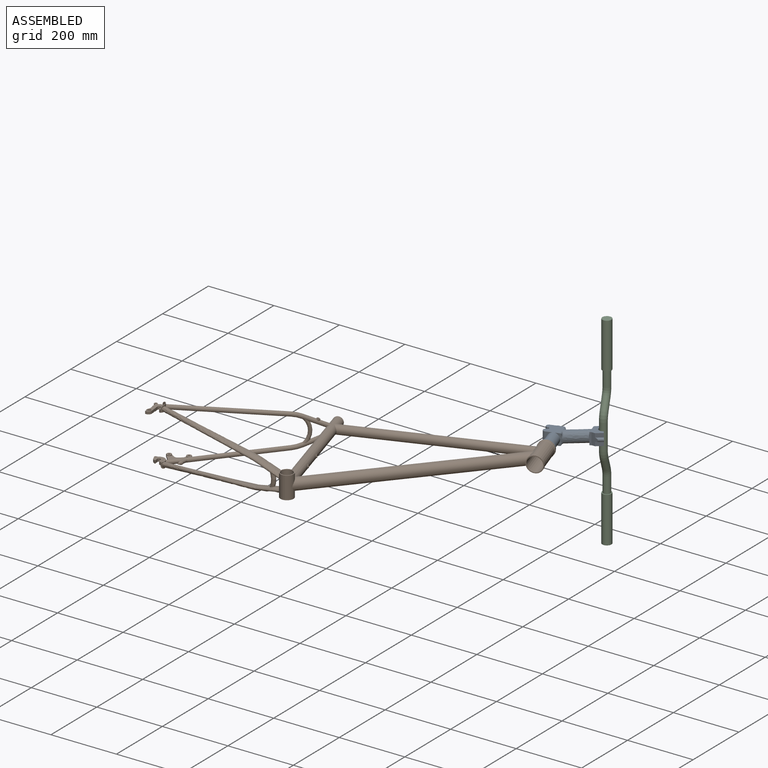
[diagram: assembled view]
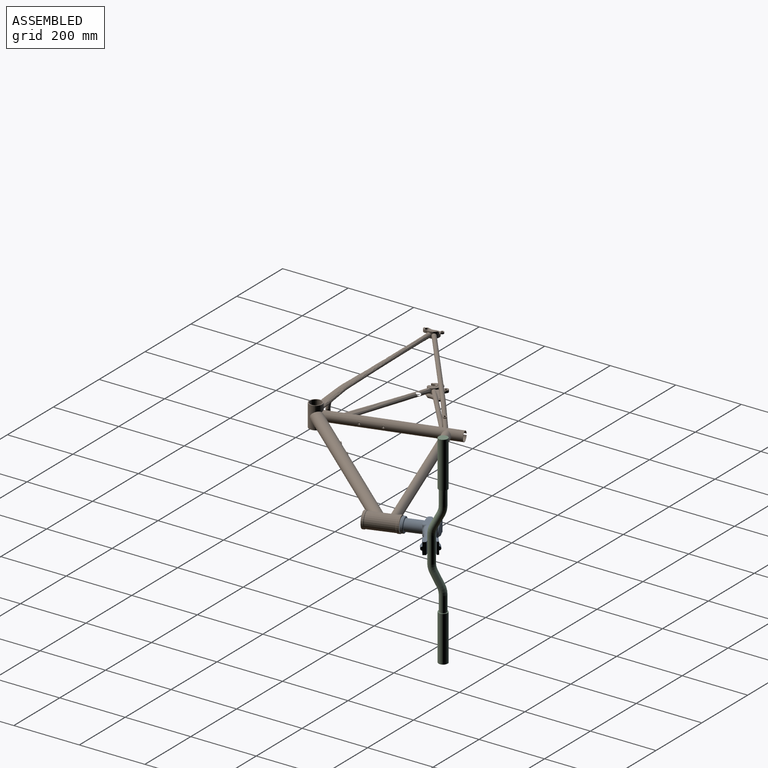
[diagram: assembled view, second angle]
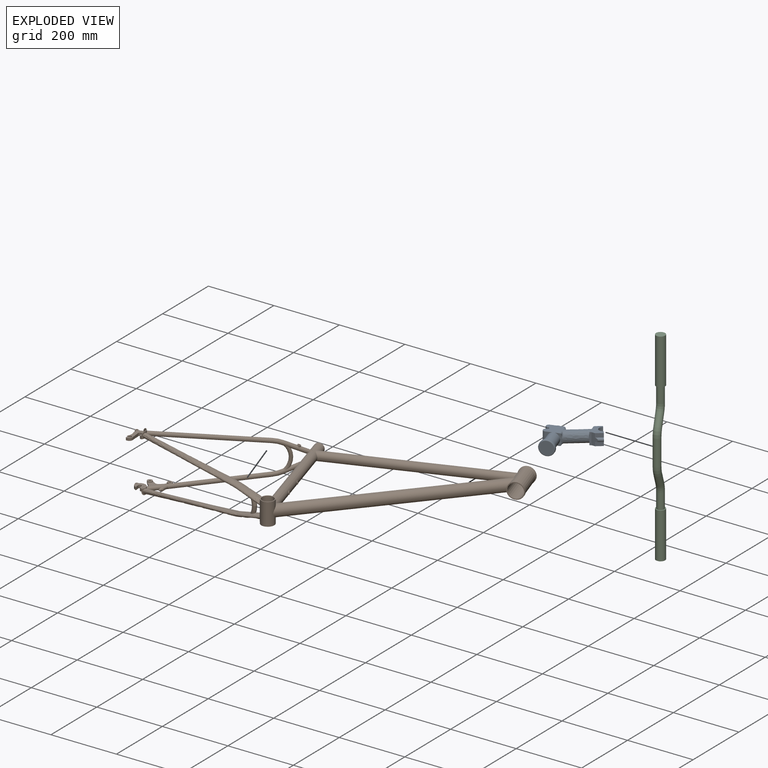
[diagram: exploded view]
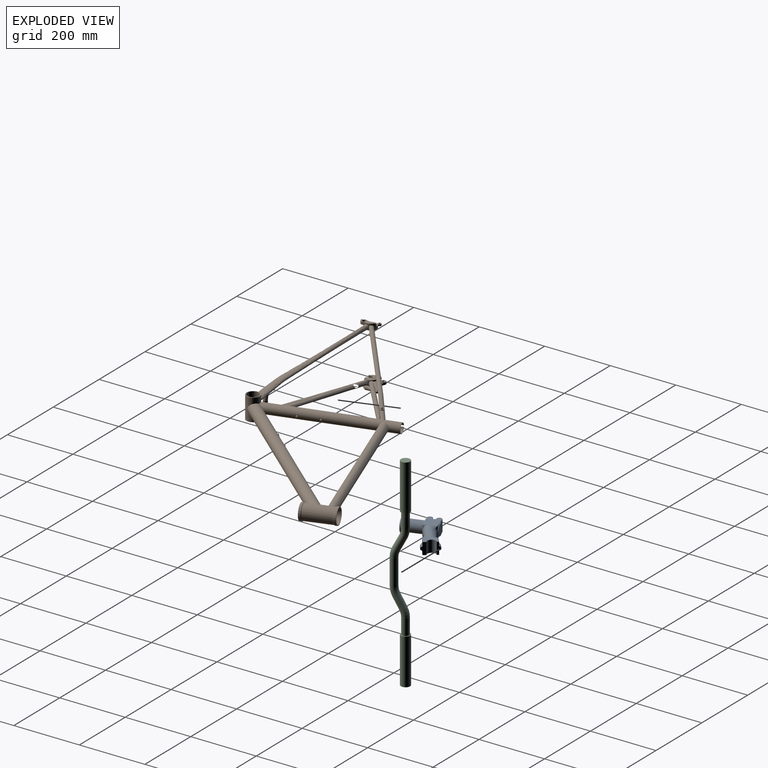
[diagram: exploded view, second angle]
ASSEMBLY  parts=3 mates=2
PART A: 98 faces, bbox 156.6x50.8x138.3 mm
  f0: plane 34x17.85mm, normal (0,0,1), area 269.7mm2, adj f19,f22,f29,f94
  f1: plane 11.87x9.96mm, normal (0,0,1), area 40mm2, adj f22,f41,f43,f94
  f2: plane 11.87x9.96mm, normal (0,0,1), area 40mm2, adj f29,f39,f41,f94
  f3: plane 7.81x6.64mm, normal (-1,0,0), area 21.3mm2, adj f7,f74,f90
  f4: plane 9.85x9.63mm, normal (-1,0,0), area 36.1mm2, adj f8,f71,f85
  f5: plane 36x14.69mm, normal (0.94,0,0.34), area 409mm2, adj f7,f8,f73,f78,f79,f80
  f6: plane 36x19.07mm, normal (-0.3,0,-0.95), area 467.7mm2, adj f7,f8,f74,f78,f79,f80
  f7: plane 47.07x36.33mm, normal (0,1,0), area 945.4mm2, adj f3,f5,f6,f70,f71,f72,f73,f74
  f8: plane 47.06x36.32mm, normal (0,-1,0), area 945.4mm2, adj f4,f5,f6,f69,f71,f72,f73,f74
  f9: plane 11.87x9.96mm, normal (0,0,-1), area 40mm2, adj f14,f25,f48,f50
  f10: plane 34x17.85mm, normal (0,0,-1), area 269.7mm2, adj f14,f17,f28,f35
  f11: plane 41x41mm, normal (0,0,1), area 358.1mm2, adj f14,f15
  f12: cylinder r=22.5mm len=45mm, axis (0,0,-1), area 777.5mm2, adj f15,f81
  f13: plane 40x40mm, normal (0,0,-1), area 1256.6mm2, adj f81
  f14: cylinder r=17.5mm len=49mm, axis (0,0,-1), area 5387.8mm2, adj f9,f10,f11,f16,f27,f34,f48
  f15: torus R=20.5mm, axis (0,0,1), area 429.8mm2, adj f11,f12
  f16: plane 11.87x9.96mm, normal (0,0,-1), area 40mm2, adj f14,f32,f46,f48
  f17: cylinder r=8mm len=34mm, axis (0,-1,0), area 854.5mm2, adj f10,f18,f26,f33
  f18: cylinder r=4.5mm len=34mm, axis (0,-1,0), area 480.7mm2, adj f17,f19,f24,f31
  f19: cylinder r=8mm len=34mm, axis (0,-1,0), area 854.5mm2, adj f0,f18,f23,f30
  f20: plane 47.83x39.14mm, normal (0,1,0), area 1619.4mm2, adj f22,f23,f24,f25,f26,f27,f28,f47
  f21: plane 47.83x39.14mm, normal (0,-1,0), area 1619.4mm2, adj f29,f30,f31,f32,f33,f34,f35,f38
  f22: cylinder r=1mm len=38mm, axis (-1,0,0), area 59.7mm2, adj f0,f1,f20,f23,f45,f92
  f23: torus R=7mm, axis (0,1,0), area 37.7mm2, adj f19,f20,f22,f24
  f24: torus R=5.5mm, axis (0,1,0), area 24mm2, adj f18,f20,f23,f26
  f25: cylinder r=1mm len=11.85mm, axis (1,0,0), area 18.6mm2, adj f9,f20,f27,f52
  f26: torus R=7mm, axis (0,1,0), area 37.7mm2, adj f17,f20,f24,f28
  f27: bspline ~9.38x1.15mm, area 10.2mm2, adj f14,f20,f25,f28
  f28: cylinder r=1mm len=17.85mm, axis (1,0,0), area 28mm2, adj f10,f20,f26,f27
  f29: cylinder r=1mm len=38mm, axis (1,0,0), area 59.7mm2, adj f0,f2,f21,f30,f37,f93
  f30: torus R=7mm, axis (0,1,0), area 37.7mm2, adj f19,f21,f29,f31
  f31: torus R=5.5mm, axis (0,1,0), area 24mm2, adj f18,f21,f30,f33
  f32: cylinder r=1mm len=11.85mm, axis (-1,0,0), area 18.6mm2, adj f16,f21,f34,f44
  f33: torus R=7mm, axis (0,1,0), area 37.7mm2, adj f17,f21,f31,f35
  f34: bspline ~9.38x1.15mm, area 10.2mm2, adj f14,f21,f32,f35
  f35: cylinder r=1mm len=17.85mm, axis (-1,0,0), area 28mm2, adj f10,f21,f33,f34
  f36: extruded ~63.94x58.22mm, area 6813.9mm2, adj f53,f54,f55,f56,f57,f58,f59,f60
  f37: bspline ~5.06x3.96mm, area 7.9mm2, adj f29,f38,f39,f62
  f38: cylinder r=5mm len=7.78mm, axis (0,0,-1), area 34.1mm2, adj f21,f37,f40,f64
  f39: cylinder r=5mm len=8.88mm, axis (0,-1,0), area 40mm2, adj f2,f37,f41,f60
  f40: bspline ~24.97x5.5mm, area 62mm2, adj f21,f38,f42,f66
  f41: bspline ~18.75x5.87mm, area 56.5mm2, adj f1,f2,f39,f43,f58,f96
  f42: cylinder r=5mm len=7.78mm, axis (0,0,-1), area 38.8mm2, adj f21,f40,f44,f68
  f43: cylinder r=5mm len=8.88mm, axis (0,-1,0), area 40mm2, adj f1,f41,f45,f56
  f44: bspline ~5.19x4.74mm, area 8.4mm2, adj f32,f42,f46,f67
  f45: bspline ~5.06x3.96mm, area 7.9mm2, adj f22,f43,f47,f54
  f46: cylinder r=5mm len=8.88mm, axis (0,-1,0), area 47.4mm2, adj f16,f44,f48,f65
  f47: cylinder r=5mm len=7.78mm, axis (0,0,1), area 34.1mm2, adj f20,f45,f49,f53
  f48: bspline ~18.75x5.87mm, area 69.7mm2, adj f9,f14,f16,f46,f50,f63
  f49: bspline ~24.97x5.5mm, area 62mm2, adj f20,f47,f51,f55
  f50: cylinder r=5mm len=8.88mm, axis (0,-1,0), area 47.4mm2, adj f9,f48,f52,f61
  f51: cylinder r=5mm len=7.78mm, axis (0,0,1), area 38.8mm2, adj f20,f49,f52,f57
  f52: bspline ~5.19x4.74mm, area 8.4mm2, adj f25,f50,f51,f59
  f53: bspline ~11.23x7.89mm, area 33.9mm2, adj f36,f47,f54,f55
  f54: bspline ~6.18x4.52mm, area 8.2mm2, adj f36,f45,f53,f56
  f55: bspline ~24.03x4.68mm, area 58.2mm2, adj f36,f49,f53,f57
  f56: bspline ~10.29x7.31mm, area 39.9mm2, adj f36,f43,f54,f58
  f57: bspline ~8.32x5.92mm, area 24.5mm2, adj f36,f51,f55,f59
  f58: bspline ~17.63x5.74mm, area 77.7mm2, adj f36,f41,f56,f60
  f59: bspline ~3.96x3.63mm, area 2.3mm2, adj f36,f52,f57,f61
  f60: bspline ~11.24x7.5mm, area 39.9mm2, adj f36,f39,f58,f62
  f61: bspline ~9.35x6.13mm, area 26mm2, adj f36,f50,f59,f63
  f62: bspline ~6.17x4.35mm, area 8.2mm2, adj f36,f37,f60,f64
  f63: bspline ~17x3.33mm, area 47.9mm2, adj f36,f48,f61,f65
  f64: bspline ~9.41x7.42mm, area 33.9mm2, adj f36,f38,f62,f66
  f65: bspline ~10.05x6.3mm, area 26mm2, adj f36,f46,f63,f67
  f66: bspline ~23.97x4.68mm, area 58.2mm2, adj f36,f40,f64,f68
  f67: bspline ~4.02x3.82mm, area 2.3mm2, adj f36,f44,f65,f68
  f68: bspline ~9.28x6.37mm, area 24.5mm2, adj f36,f42,f66,f67
  f69: plane 7.81x6.64mm, normal (-1,0,0), area 21.3mm2, adj f8,f74,f83
  f70: plane 9.85x9.63mm, normal (-1,0,0), area 36.1mm2, adj f7,f71,f88
  f71: plane 37.49x12.01mm, normal (-0.88,0,0.48), area 198.9mm2, adj f4,f7,f8,f70,f75,f76,f77,f86
  f72: plane 36x10.68mm, normal (0.94,0,0.34), area 255.3mm2, adj f7,f8,f73,f75,f76,f77
  f73: cylinder r=13mm len=36mm, axis (0,-1,0), area 1470.3mm2, adj f5,f7,f8,f72
  f74: plane 38.07x6.89mm, normal (0.34,0,-0.94), area 184.7mm2, adj f3,f6,f7,f8,f69,f82,f91
  f75: cylinder r=5.68mm len=22.12mm, axis (0.94,0,0.34), area 309.7mm2, adj f71,f72,f76,f77
  f76: plane 20.17x12.32mm, normal (-0.34,0,0.94), area 264.4mm2, adj f8,f71,f72,f75
  f77: plane 20.17x12.32mm, normal (-0.34,0,0.94), area 264.4mm2, adj f7,f71,f72,f75
  f78: cylinder r=5.68mm len=22.98mm, axis (0.94,0,0.34), area 315.6mm2, adj f5,f6,f79,f80
  f79: plane 21.04x12.32mm, normal (0.34,0,-0.94), area 275.8mm2, adj f5,f6,f8,f78
  f80: plane 21.04x12.32mm, normal (0.34,0,-0.94), area 275.8mm2, adj f5,f6,f7,f78
  f81: torus R=20mm, axis (0,0,1), area 532.8mm2, adj f12,f13
  f82: bspline ~11.87x3.61mm, area 14.9mm2, adj f36,f74,f83
  f83: bspline ~10.76x10.44mm, area 42.6mm2, adj f36,f69,f82,f84
  f84: bspline ~18.7x3.29mm, area 40.2mm2, adj f8,f36,f83,f85
  f85: bspline ~13.25x12.74mm, area 43.1mm2, adj f4,f36,f84,f86
  f86: bspline ~8.15x2.16mm, area 7.7mm2, adj f36,f71,f85
  f87: bspline ~9.08x2.55mm, area 7.7mm2, adj f36,f71,f88
  f88: bspline ~13.22x12.7mm, area 43.1mm2, adj f36,f70,f87,f89
  f89: bspline ~19.48x3.44mm, area 40.2mm2, adj f7,f36,f88,f90
  f90: bspline ~11.67x10.88mm, area 42.6mm2, adj f3,f36,f89,f91
  f91: bspline ~11.87x3.61mm, area 22.5mm2, adj f36,f74,f90
  f92: plane 8.31x0.5mm, normal (0,0,-1), area 2.8mm2, adj f22,f94
  f93: plane 8.31x0.5mm, normal (0,0,-1), area 2.8mm2, adj f29,f94
  f94: cylinder r=17.5mm len=35mm, axis (0,0,-1), area 164.9mm2, adj f0,f1,f2,f92,f93,f96,f97
  f95: plane 34x34mm, normal (0,0,1), area 907.9mm2, adj f97
  f96: plane 14.08x1.48mm, normal (0,0,-1), area 10.8mm2, adj f41,f94
  f97: torus R=17mm, axis (0,0,1), area 85.5mm2, adj f94,f95
PART B: 128 faces, bbox 917.7x575.7x175 mm
  f0: plane 15x15mm, normal (0,0,1), area 148.4mm2, adj f61,f64
  f1: plane 15x15mm, normal (0,0,1), area 148.4mm2, adj f62,f70
  f2: cylinder r=6.5mm len=252.72mm, axis (0.77,0.63,0.1), area 12417.8mm2, adj f41,f59,f60,f63,f71,f72,f120
  f3: cylinder r=2.5mm len=10.85mm, axis (0.76,-0.65,0), area 157.1mm2, adj f4,f10
  f4: plane 5x3.79mm, normal (-0.76,0.65,0), area 19.6mm2, adj f3
  f5: cylinder r=2.5mm len=10.85mm, axis (0.76,-0.65,0), area 157.1mm2, adj f6,f12
  f6: plane 5x3.79mm, normal (-0.76,0.65,0), area 19.6mm2, adj f5
  f7: cylinder r=2.5mm len=6.18mm, axis (-0.96,-0.28,0), area 78.5mm2, adj f19,f20
  f8: cylinder r=2.5mm len=6.18mm, axis (-0.96,-0.28,0), area 78.5mm2, adj f15,f16
  f9: cylinder r=5mm len=10mm, axis (-0.76,0.65,0), area 101.5mm2, adj f10,f124
  f10: plane 10x7.59mm, normal (-0.76,0.65,0), area 58.9mm2, adj f3,f9
  f11: cylinder r=5mm len=10mm, axis (-0.76,0.65,0), area 101.5mm2, adj f12,f124
  f12: plane 10x7.59mm, normal (-0.76,0.65,0), area 58.9mm2, adj f5,f11
  f13: cylinder r=5mm len=10.15mm, axis (-0.96,-0.28,0), area 48.1mm2, adj f16,f35
  f14: cylinder r=5mm len=10.36mm, axis (-0.96,-0.28,0), area 70mm2, adj f15,f29
  f15: plane 10x9.61mm, normal (-0.96,-0.28,0), area 58.9mm2, adj f8,f14
  f16: plane 10x9.61mm, normal (0.96,0.28,0), area 58.9mm2, adj f8,f13
  f17: cylinder r=5mm len=10.15mm, axis (-0.96,-0.28,0), area 48.1mm2, adj f20,f35
  f18: cylinder r=5mm len=10.36mm, axis (-0.96,-0.28,0), area 70mm2, adj f19,f29
  f19: plane 10x9.61mm, normal (-0.96,-0.28,0), area 58.9mm2, adj f7,f18
  f20: plane 10x9.61mm, normal (0.96,0.28,0), area 58.9mm2, adj f7,f17
  f21: cylinder r=22mm len=108.7mm, axis (0.31,-0.95,0), area 13823mm2, adj f121,f122
  f22: cone r=23.9mm half-angle=45deg, axis (0.31,-0.95,0), area 254.8mm2, adj f23,f25
  f23: cylinder r=23.3mm len=93.91mm, axis (-0.31,0.95,0), area 10396.2mm2, adj f22,f24,f123,f124
  f24: cone r=23.9mm half-angle=45deg, axis (-0.31,0.95,0), area 254.8mm2, adj f23,f26
  f25: cylinder r=24.5mm len=49mm, axis (-0.31,0.95,0), area 1077.6mm2, adj f22,f122
  f26: cylinder r=24.5mm len=49mm, axis (0.31,-0.95,0), area 1077.6mm2, adj f24,f121
  f27: torus R=50mm, axis (0.13,0.99,0), area 1752.3mm2, adj f73,f115
  f28: cylinder r=17.5mm len=68mm, axis (0,0,-1), area 7477mm2, adj f126,f127
  f29: cylinder r=13.7mm len=372.29mm, axis (0.28,-0.96,0), area 32144.1mm2, adj f14,f18,f30,f31,f32,f33,f34
  f30: cylinder r=20mm len=26.34mm, axis (0,0,1), area 355mm2, adj f29
  f31: plane 29.8x28.44mm, normal (-0.28,0.96,0), area 101.8mm2, adj f29,f32,f34,f35
  f32: plane 24.85x8.2mm, normal (0,0,-1), area 31.1mm2, adj f29,f31,f33,f35
  f33: cylinder r=2.5mm len=5mm, axis (0.96,0.28,0), area 10.4mm2, adj f29,f32,f34,f35
  f34: plane 24.85x8.2mm, normal (0,0,1), area 31.1mm2, adj f29,f31,f33,f35
  f35: cylinder r=14.9mm len=374.13mm, axis (-0.28,0.96,0), area 33689.1mm2, adj f13,f17,f31,f32,f33,f34,f116,f119
  f36: cylinder r=2.5mm len=11.16mm, axis (0.3,0.24,-0.92), area 157.1mm2, adj f37,f58
  f37: plane 4.85x4.77mm, normal (0.3,0.24,-0.92), area 19.6mm2, adj f36
  f38: cylinder r=2.5mm len=11.16mm, axis (-0.3,-0.24,-0.92), area 157.1mm2, adj f39,f55
  f39: plane 4.85x4.77mm, normal (0.3,0.24,0.92), area 19.6mm2, adj f38
  f40: cylinder r=2mm len=5mm, axis (0,0,-1), area 19.4mm2, adj f41,f43,f48,f50
  f41: cylinder r=17.5mm len=34.73mm, axis (0,0,1), area 568.7mm2, adj f2,f40,f42,f48,f50,f73,f85,f94
  f42: cylinder r=2mm len=5mm, axis (0,0,-1), area 19.4mm2, adj f41,f43,f48,f50
  f43: cylinder r=5mm len=10mm, axis (0,0,-1), area 111.6mm2, adj f40,f42,f48,f50
  f44: cylinder r=2mm len=5mm, axis (0,0,1), area 19.4mm2, adj f45,f46,f51,f53
  f45: cylinder r=17.5mm len=35mm, axis (0,0,1), area 652.9mm2, adj f44,f47,f51,f53,f78,f90,f92,f106
  f46: cylinder r=5mm len=10mm, axis (0,0,-1), area 111.6mm2, adj f44,f47,f51,f53
  f47: cylinder r=2mm len=5mm, axis (0,0,-1), area 19.4mm2, adj f45,f46,f51,f53
  f48: plane 12.94x12.63mm, normal (0,0,1), area 67.5mm2, adj f40,f41,f42,f43,f49
  f49: cylinder r=2.5mm len=5mm, axis (0,0,-1), area 78.5mm2, adj f48,f50
  f50: plane 39.34x29.52mm, normal (0,0,-1), area 643.5mm2, adj f40,f41,f42,f43,f49,f74,f75,f80
  f51: plane 12.94x12.63mm, normal (0,0,-1), area 67.5mm2, adj f44,f45,f46,f47,f52
  f52: cylinder r=2.5mm len=5mm, axis (0,0,-1), area 78.5mm2, adj f51,f53
  f53: plane 57.03x39.34mm, normal (0,0,1), area 947.7mm2, adj f44,f45,f46,f47,f52,f77,f78,f91
  f54: cylinder r=5mm len=10.99mm, axis (0.3,0.24,0.92), area 152.3mm2, adj f55,f116
  f55: plane 9.7x9.54mm, normal (0.3,0.24,0.92), area 58.9mm2, adj f38,f54
  f56: torus R=50mm, axis (0.63,-0.78,0), area 2263.2mm2, adj f116,f119
  f57: cylinder r=5mm len=11mm, axis (-0.3,-0.24,0.92), area 113.1mm2, adj f58,f119
  f58: plane 9.7x9.54mm, normal (0.3,0.24,-0.92), area 58.9mm2, adj f36,f57
  f59: plane 63.16x49.64mm, normal (0,0,1), area 638.9mm2, adj f2,f60,f63,f64,f66,f67,f68,f69
  f60: plane 8.58x5.81mm, normal (0.83,0.56,0), area 41.8mm2, adj f2,f59,f64,f71
  f61: cylinder r=3mm len=7mm, axis (0,0,-1), area 131.9mm2, adj f0,f71
  f62: cylinder r=3mm len=7mm, axis (0,0,-1), area 131.9mm2, adj f1,f71
  f63: plane 19.48x18.83mm, normal (-0.72,-0.7,0), area 107.6mm2, adj f2,f59,f70,f71
  f64: cylinder r=7.5mm len=15mm, axis (0,0,-1), area 215mm2, adj f0,f59,f60,f65,f71
  f65: plane 4.5x0.01mm, normal (0.95,0.33,0), area 0.1mm2, adj f64,f66
  f66: cylinder r=10mm len=11.03mm, axis (0,0,-1), area 55mm2, adj f59,f65,f67,f71
  f67: plane 8.99x7.29mm, normal (-0.63,0.78,0), area 52.1mm2, adj f59,f66,f68,f71
  f68: cylinder r=10mm len=11.44mm, axis (0,0,-1), area 55mm2, adj f59,f67,f69,f71
  f69: plane 12.03x7.22mm, normal (0.51,0.86,0), area 63.1mm2, adj f59,f68,f70,f71
  f70: cylinder r=7.5mm len=15mm, axis (0,0,-1), area 215mm2, adj f1,f59,f63,f69,f71
  f71: plane 66.06x49.59mm, normal (0,0,-1), area 872.3mm2, adj f2,f60,f61,f62,f63,f64,f66,f67
  f72: torus R=50mm, axis (0.11,0.01,-0.99), area 1159.8mm2, adj f2,f73
  f73: bspline ~405.77x75.56mm, area 19657.8mm2, adj f27,f41,f72,f125
  f74: cylinder r=1mm len=9mm, axis (0,0,-1), area 17.4mm2, adj f50,f75,f76,f95
  f75: cylinder r=16.74mm len=12.33mm, axis (0,0,-1), area 149.3mm2, adj f50,f74,f76,f84,f85,f94
  f76: plane 21.32x21.23mm, normal (0,0,1), area 222.3mm2, adj f74,f75,f80,f81,f82,f83,f84,f95
  f77: cylinder r=3mm len=9mm, axis (0,0,-1), area 33.5mm2, adj f53,f78,f79,f96
  f78: plane 9x5.24mm, normal (-0.22,-0.98,0), area 46.6mm2, adj f45,f53,f77,f79,f87,f90
  f79: plane 21.6x21.23mm, normal (0,0,-1), area 222.7mm2, adj f77,f78,f86,f87,f88,f89,f96,f98
  f80: cylinder r=3mm len=9mm, axis (0,0,-1), area 33.5mm2, adj f50,f76,f81,f112
  f81: plane 9x8.01mm, normal (-0.99,-0.11,0), area 72.6mm2, adj f50,f76,f80,f97
  f82: plane 12.18x2.32mm, normal (0.7,0.08,0.71), area 17.1mm2, adj f76,f83,f85,f112
  f83: cone r=10.5mm half-angle=45deg, axis (0,0,-1), area 46.7mm2, adj f76,f82,f84,f85
  f84: plane 8.68x1.95mm, normal (-0.7,-0.08,0.71), area 11.8mm2, adj f75,f76,f83,f85
  f85: plane 34.81x28.75mm, normal (0,0,1), area 375.2mm2, adj f41,f75,f82,f83,f84,f94,f112
  f86: cone r=17.24mm half-angle=45deg, axis (0,0,1), area 8.7mm2, adj f79,f89,f90,f99
  f87: plane 12.18x2.32mm, normal (0.7,0.08,-0.71), area 17.1mm2, adj f78,f79,f88,f90
  f88: cone r=10.5mm half-angle=45deg, axis (0,0,1), area 46.7mm2, adj f79,f87,f89,f90
  f89: plane 9.29x1.95mm, normal (-0.7,-0.08,-0.71), area 12.7mm2, adj f79,f86,f88,f90
  f90: plane 56.34x35.5mm, normal (0,0,-1), area 672.1mm2, adj f45,f78,f86,f87,f88,f89,f91,f92
  f91: cylinder r=5mm len=10mm, axis (0,0,-1), area 251.3mm2, adj f53,f90
  f92: cylinder r=20mm len=17.54mm, axis (0,0,-1), area 145.5mm2, adj f45,f53,f90,f93
  f93: cylinder r=8mm len=10.81mm, axis (0,0,-1), area 99.4mm2, adj f53,f90,f92,f100
  f94: cylinder r=5mm len=8mm, axis (0,0,1), area 16.3mm2, adj f41,f50,f75,f85
  f95: plane 9.67x9mm, normal (0.99,0.11,0), area 87.6mm2, adj f50,f74,f76,f97
  f96: plane 9x8.01mm, normal (-0.99,-0.11,0), area 72.6mm2, adj f53,f77,f79,f98
  f97: cylinder r=5mm len=9.97mm, axis (0,0,1), area 141.4mm2, adj f50,f76,f81,f95
  f98: cylinder r=5mm len=9.97mm, axis (0,0,1), area 141.4mm2, adj f53,f79,f96,f99
  f99: plane 26.89x9.01mm, normal (0.99,0.11,0), area 227.9mm2, adj f53,f79,f86,f90,f98,f101
  f100: plane 8x3.03mm, normal (-0.87,0.5,0), area 28mm2, adj f53,f90,f93,f101
  f101: cylinder r=10.31mm len=13.76mm, axis (0,0,-1), area 166.7mm2, adj f53,f90,f99,f100
  f102: cylinder r=9mm len=10.03mm, axis (-0.77,0.64,0), area 29.4mm2, adj f41,f103,f111,f113
  f103: plane 2x1.53mm, normal (-0.64,-0.77,0), area 4mm2, adj f41,f50,f102,f111
  f104: cylinder r=9mm len=9mm, axis (0,1,0), area 29.4mm2, adj f41,f105,f111,f113
  f105: plane 2x2mm, normal (-1,0,0), area 4mm2, adj f41,f50,f104,f111
  f106: cylinder r=9mm len=10.03mm, axis (0.77,-0.64,0), area 29.4mm2, adj f45,f107,f108,f114
  f107: plane 2x1.53mm, normal (-0.64,-0.77,0), area 4mm2, adj f45,f53,f106,f108
  f108: cylinder r=15.5mm len=25.46mm, axis (0,0,-1), area 351.5mm2, adj f53,f106,f107,f109,f110,f114
  f109: cylinder r=9mm len=9mm, axis (0,-1,0), area 29.4mm2, adj f45,f108,f110,f114
  f110: plane 2x2mm, normal (-1,0,0), area 4mm2, adj f45,f53,f108,f109
  f111: cylinder r=15.5mm len=25.46mm, axis (0,0,-1), area 351.5mm2, adj f50,f102,f103,f104,f105,f113
  f112: plane 9x5.24mm, normal (-0.22,-0.98,0), area 46.6mm2, adj f41,f50,f76,f80,f82,f85
  f113: plane 17.76x8.5mm, normal (0,0,-1), area 36.8mm2, adj f41,f102,f104,f111
  f114: plane 17.76x8.5mm, normal (0,0,1), area 36.8mm2, adj f45,f106,f108,f109
  f115: bspline ~405.77x75.54mm, area 21294mm2, adj f27,f45,f125
  f116: cylinder r=6.5mm len=65.08mm, axis (-0.72,-0.58,0.39), area 2679.8mm2, adj f35,f54,f56,f117
  f117: torus R=100mm, axis (0.63,-0.78,0), area 1229.4mm2, adj f116,f118
  f118: cylinder r=6.5mm len=252.66mm, axis (-0.77,-0.63,0.1), area 12910.8mm2, adj f45,f117
  f119: cylinder r=6.5mm len=65.08mm, axis (0.72,0.58,0.39), area 2674.8mm2, adj f35,f56,f57,f120
  f120: torus R=100mm, axis (0.63,-0.78,0), area 1229.4mm2, adj f2,f119
  f121: plane 49x46.6mm, normal (-0.31,0.95,0), area 365.2mm2, adj f21,f26
  f122: plane 49x46.6mm, normal (0.31,-0.95,0), area 365.2mm2, adj f21,f25
  f123: cylinder r=13.4mm len=498mm, axis (-0.94,-0.34,0), area 43555mm2, adj f23,f35
  f124: cylinder r=17.5mm len=499.6mm, axis (0.65,0.76,0), area 67157.4mm2, adj f9,f11,f23,f35,f125
  f125: cylinder r=20mm len=68mm, axis (0,0,1), area 6299.3mm2, adj f35,f73,f115,f124,f126,f127
  f126: plane 40x40mm, normal (0,0,-1), area 294.5mm2, adj f28,f125
  f127: plane 40x40mm, normal (0,0,1), area 294.5mm2, adj f28,f125
PART C: 15 faces, bbox 620x28x62.1 mm
  f0: cylinder r=11mm len=47.8mm, axis (1,0,0), area 3303.5mm2, adj f2,f13
  f1: cylinder r=11mm len=47.8mm, axis (-1,0,0), area 3303.5mm2, adj f8,f9
  f2: torus R=50mm, axis (0,1,0), area 1654.6mm2, adj f0,f3
  f3: cylinder r=11mm len=46.27mm, axis (0.89,0,0.46), area 2813.8mm2, adj f2,f4
  f4: torus R=50mm, axis (0,-1,0), area 1654.6mm2, adj f3,f5
  f5: cylinder r=11mm len=80mm, axis (1,0,0), area 5529.2mm2, adj f4,f6
  f6: torus R=50mm, axis (0,-1,0), area 1654.6mm2, adj f5,f7
  f7: cylinder r=11mm len=46.27mm, axis (0.89,0,-0.46), area 2813.8mm2, adj f6,f8
  f8: torus R=50mm, axis (0,1,0), area 1654.6mm2, adj f1,f7
  f9: plane 28x28mm, normal (1,0,0), area 235.6mm2, adj f1,f10
  f10: cylinder r=14mm len=140mm, axis (-1,0,0), area 12315mm2, adj f9,f11
  f11: plane 28x28mm, normal (-1,0,0), area 615.8mm2, adj f10
  f12: cylinder r=14mm len=140mm, axis (1,0,0), area 12315mm2, adj f13,f14
  f13: plane 28x28mm, normal (-1,0,0), area 235.6mm2, adj f0,f12
  f14: plane 28x28mm, normal (1,0,0), area 615.8mm2, adj f12
PLACE A rot(axis=(-0.98,-0.15,0.15),91.4deg) t=(849.64,518.41,-76.5)mm
PLACE B t=(10,28.28,-76.5)mm
PLACE C rot(axis=(-0.51,-0.7,-0.51),110.2deg) t=(913.79,689.99,-386.5)mm
MATE revolute B.f21 <-> A.f12  axis (-0.31,0.95,0) through (849.64,518.41,-76.5)mm
MATE revolute C.f5 <-> A.f73  axis (0,0,1) through (923.06,661.46,-76.5)mm
